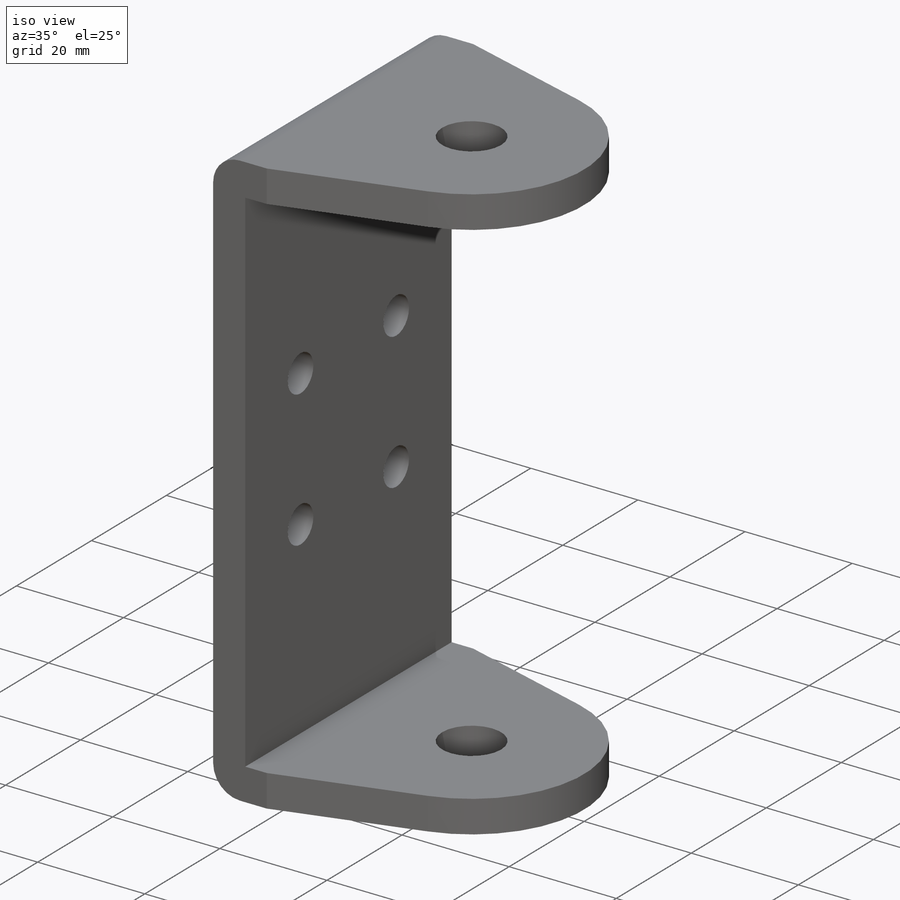
[diagram: iso view]
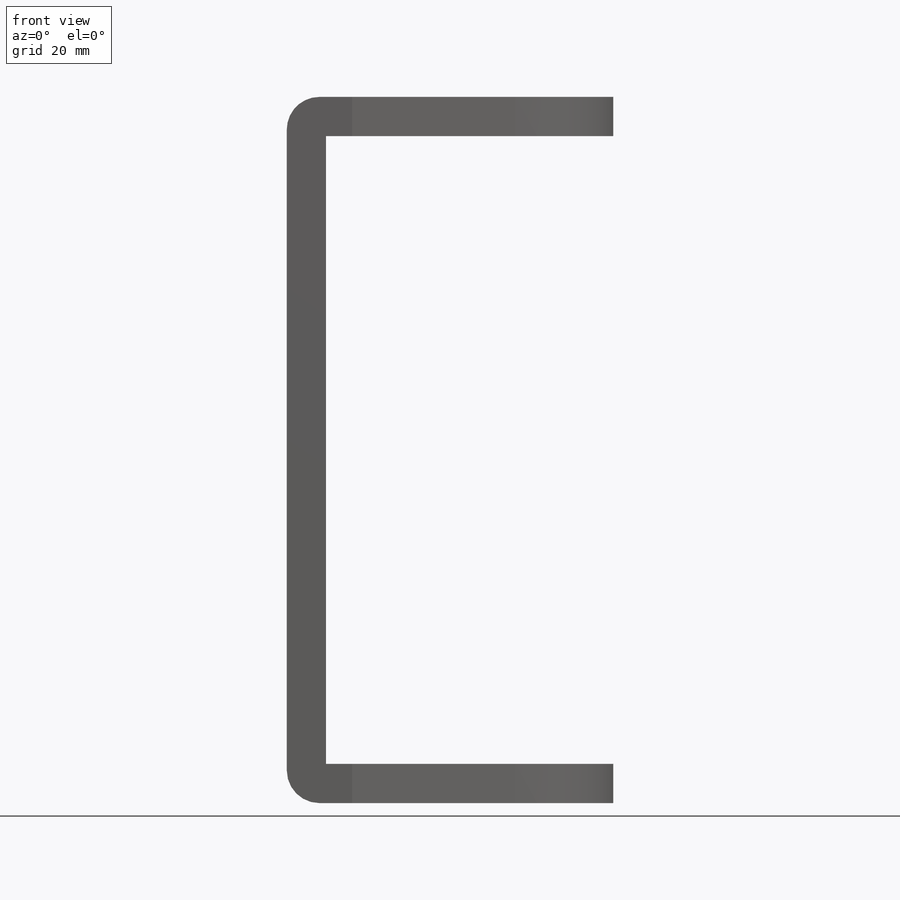
[diagram: front view]
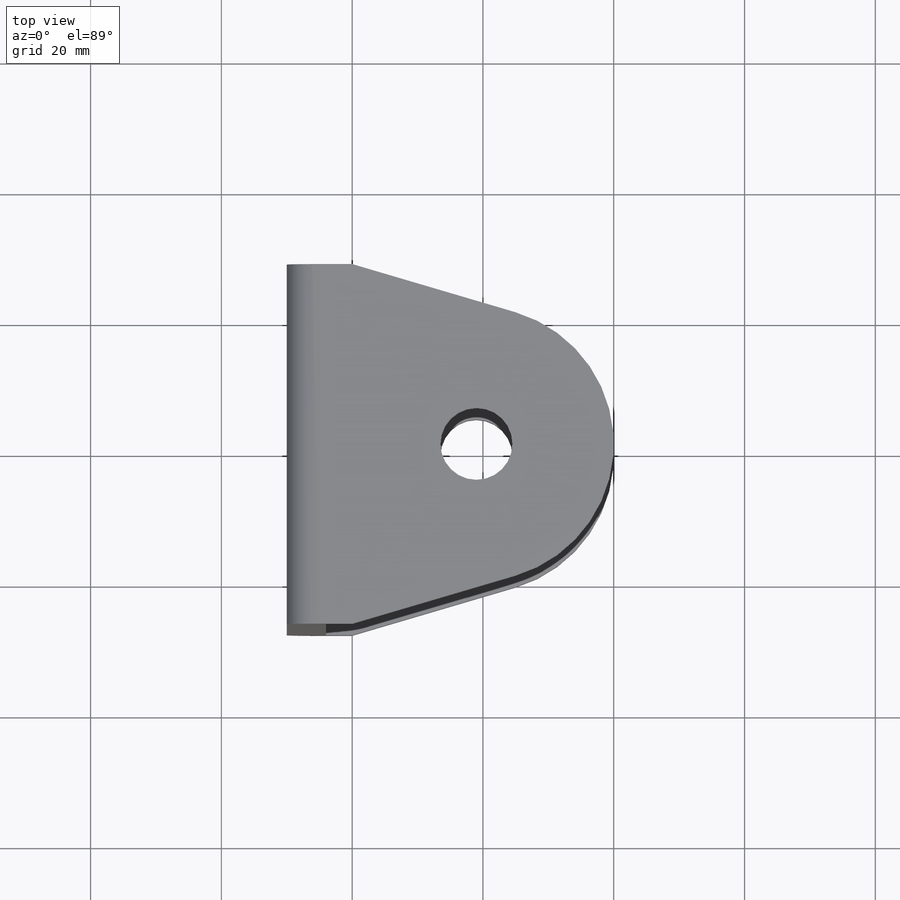
[diagram: top view]
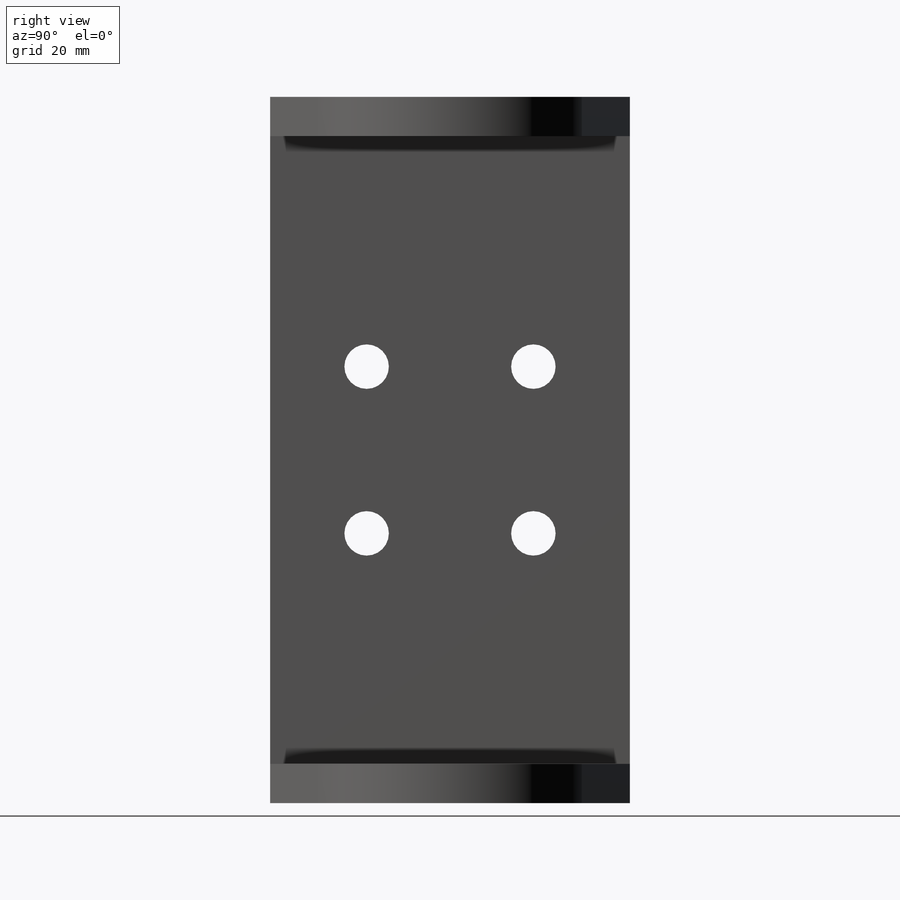
[diagram: right view]
SOLIDWORKS PART (.sldprt)
format: sldprt  version: not decoded by parser v0  size: 1,092,608 bytes
history: native  units: mm
features: sketch x10, thread x7, cut_extrude x5, plane x3, material x1, extrude x1, hole x1 + 1 further entry (+11 scaffold rows collapsed)
feature tree (40):
  scaffold x11  (default folders/planes/origin — collapsed)
  material  "材質 <未指定>"
  plane  "前基準面"
  plane  "上基準面"
  plane  "右基準面"
  "設計表格"
  sketch  "草圖1"  dims[c1.D5=5.0mm c1.D6=5.0mm c1.D1=120.0mm c1.D2=108.0mm c1.D3=50.0mm c1.D4=54.0mm c2.D2=100.0mm c2.D4=48.0mm c3.D2=108.0mm c3.D4=96.0mm c3.D1=6.0mm]
  extrude  "填料-伸長1"  Depth=55mm
  hole  "M10 螺紋孔1"  [1 undecoded]
  sketch  "草圖4"  dims[D1=21.0mm D2=55.0mm]
  sketch  "草圖3"  dims[hole-wizard template sketch: 59 standard entries collapsed; hole parameters kept: c18.貫穿螺孔鑽直徑=8.5mm c18.貫穿螺孔鑽深度=108.0mm]
  thread  "鑽孔螺紋1"  Diameter=10mm  [1 undecoded]
  sketch  "草圖6"  dims[c1.D3=6.8mm c1.D4=6.8mm c1.D1=12.73mm c1.D2=12.73mm c2.D1=25.5mm c2.D2=25.5mm]
  cut_extrude  "除料-伸長1"  [1 undecoded]
  thread  "裝飾螺紋線2"  Diameter=7mm  [1 undecoded]
  thread  "裝飾螺紋線3"  Diameter=7mm  [1 undecoded]
  thread  "裝飾螺紋線4"  Diameter=7mm  [1 undecoded]
  thread  "裝飾螺紋線5"  Diameter=7mm  [1 undecoded]
  sketch  "草圖7"
  sketch  "草圖8"
  sketch  "草圖9"  dims[D2=10.0mm D1=21.0mm D3=21.0mm]
  cut_extrude  "除料-伸長2"  Depth=136mm
  sketch  "草圖10"  dims[D1=10.0mm]
  cut_extrude  "除料-伸長3"  [1 undecoded]
  sketch  "草圖13"  dims[D1=3.0mm D2=84.0mm D3=42.0mm]
  cut_extrude  "除料-伸長4"  [1 undecoded]
  thread  "裝飾螺紋線7"  Diameter=4mm  [1 undecoded]
  thread  "裝飾螺紋線8"  Diameter=4mm  [1 undecoded]
  sketch  "草圖14"  dims[D1=11.0mm]
  cut_extrude  "除料-伸長5"  [1 undecoded]
decode coverage: 17 of 24 modeling features carry decoded parameters; 1 rows unclassified (native names shown)
note: ~ marks probable driven/reference dimensions
note: 12 parameter values undecoded
summary: no parameter record found for 5 features
note: suppression state not decoded; provenance and decode notes live in map.json
